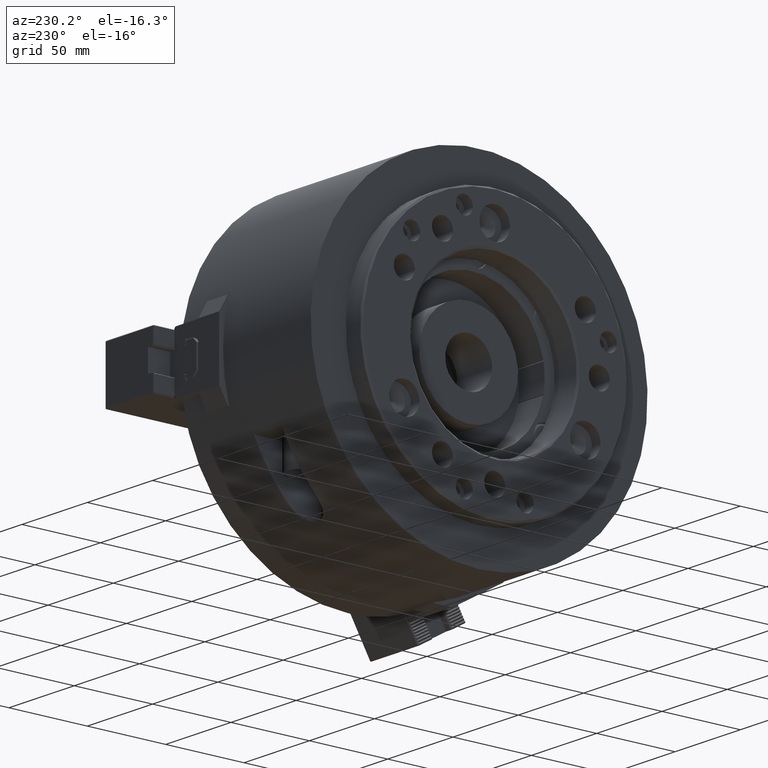
[diagram: clean part render]
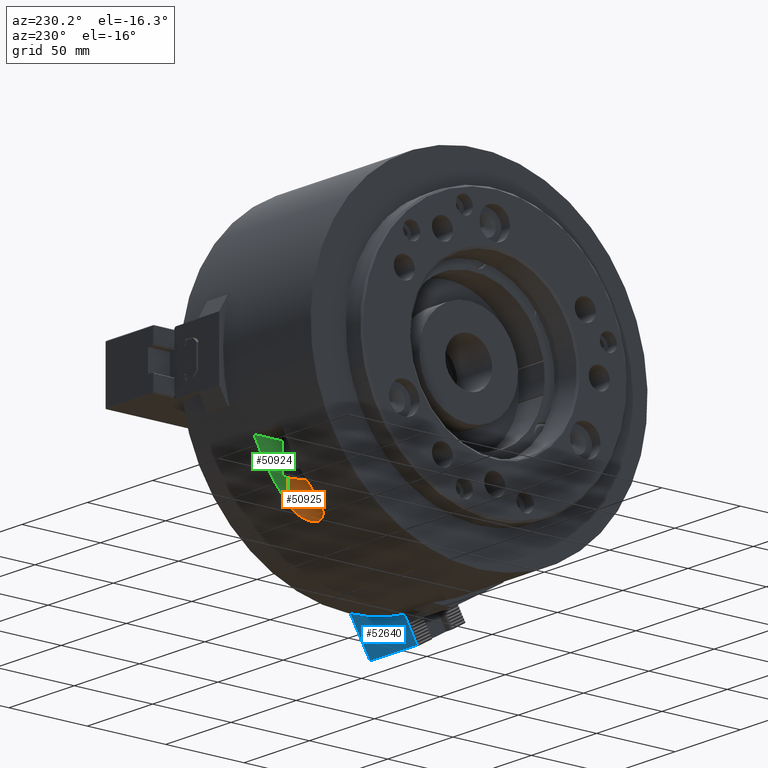
[diagram: same view with three faces highlighted in distinct colors, each labeled with its STEP entity id]
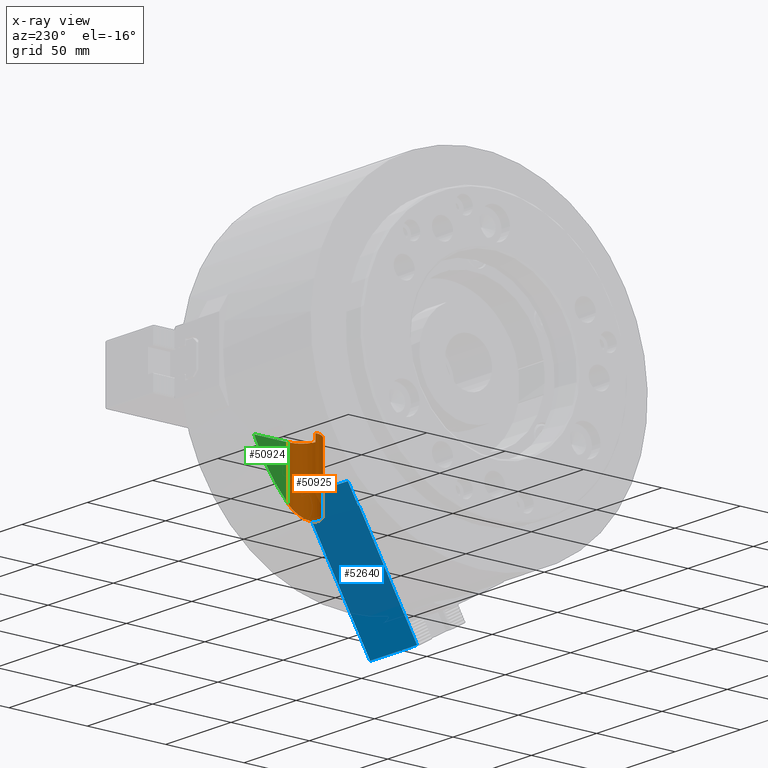
[diagram: x-ray of the same camera — body ghosted, the three highlighted faces saturated]
A machine part, auxiliary view with three faces highlighted in distinct colors.
The next image is the same camera in x-ray (body ghosted, the three faces saturated) — at least one of them is partly hidden behind the body in this view.
Their STEP definitions:

[orange] entity #50925 — the highlighted cylindrical surface (edge-blend (fillet) strip) has radius 10.5 mm, axis along (0, 0, 1).
#59=B_SPLINE_CURVE_WITH_KNOTS('',3,(#71754,#71755,#71756,#71757,#71758,
#71759,#71760,#71761,#71762,#71763,#71764,#71765),.UNSPECIFIED.,.F.,.F.,
(4,1,1,1,1,1,1,1,1,4),(3.98609107286759E-17,0.00482801106460853,0.00965602212921702,
0.0144840331938255,0.019312044258434,0.0217260497907383,0.0241400553230425,
0.028968066387651,0.0337960774522595,0.038624088516868),.UNSPECIFIED.);
#299=LINE('',#72650,#6799);
#301=LINE('',#72654,#6801);
#6799=VECTOR('',#58814,1000.);
#6801=VECTOR('',#58818,1000.);
#15586=CYLINDRICAL_SURFACE('',#54403,10.5);
#16739=ORIENTED_EDGE('',*,*,#30643,.T.);
#16740=ORIENTED_EDGE('',*,*,#31055,.T.);
#16741=ORIENTED_EDGE('',*,*,#31056,.T.);
#16742=ORIENTED_EDGE('',*,*,#31053,.F.);
#30643=EDGE_CURVE('',#42190,#42193,#59,.T.);
#31053=EDGE_CURVE('',#42190,#42495,#299,.T.);
#31055=EDGE_CURVE('',#42193,#42496,#301,.T.);
#31056=EDGE_CURVE('',#42496,#42495,#38220,.T.);
#38220=CIRCLE('',#54404,10.5);
#39159=EDGE_LOOP('',(#16739,#16740,#16741,#16742));
#42190=VERTEX_POINT('',#71748);
#42193=VERTEX_POINT('',#71753);
#42495=VERTEX_POINT('',#72651);
#42496=VERTEX_POINT('',#72655);
#47600=FACE_BOUND('',#39159,.T.);
#50925=ADVANCED_FACE('',(#47600),#15586,.F.);
#54403=AXIS2_PLACEMENT_3D('',#72653,#58816,#58817);
#54404=AXIS2_PLACEMENT_3D('',#72656,#58819,#58820);
#58814=DIRECTION('',(0.,0.,1.));
#58816=DIRECTION('',(0.,0.,1.));
#58817=DIRECTION('',(1.,0.,0.));
#58818=DIRECTION('',(0.,0.,1.));
#58819=DIRECTION('',(0.,0.,1.));
#58820=DIRECTION('',(-1.,0.,0.));
#71748=CARTESIAN_POINT('',(-45.,76.1,-75.9278604992923));
#71753=CARTESIAN_POINT('',(-66.,76.1,-75.9278604992923));
#71754=CARTESIAN_POINT('',(-45.,76.1,-75.9278604992923));
#71755=CARTESIAN_POINT('',(-45.,74.952594143434,-77.0778676917837));
#71756=CARTESIAN_POINT('',(-45.3690207820172,72.6285706103757,-79.3021002888925));
#71757=CARTESIAN_POINT('',(-47.2269107329786,69.2117958771517,-82.291827276393));
#71758=CARTESIAN_POINT('',(-50.6608044498884,66.3935076910929,-84.5597551399907));
#71759=CARTESIAN_POINT('',(-54.6688054298931,65.4078290713895,-85.3108204551561));
#71760=CARTESIAN_POINT('',(-57.9163074927674,65.7872422215263,-85.0202467639792));
#71761=CARTESIAN_POINT('',(-60.8997140071235,66.861176695147,-84.1844645401245));
#71762=CARTESIAN_POINT('',(-63.7731461482348,69.2086204219084,-82.2940763910829));
#71763=CARTESIAN_POINT('',(-65.6290650509916,72.6243910063668,-79.3060905951348));
#71764=CARTESIAN_POINT('',(-66.,74.951781182866,-77.0786824954516));
#71765=CARTESIAN_POINT('',(-66.,76.1,-75.9278604992923));
#72650=CARTESIAN_POINT('',(-45.,76.1,-107.5));
#72651=CARTESIAN_POINT('',(-45.,76.1,-44.5));
#72653=CARTESIAN_POINT('',(-55.5,76.1,-107.5));
#72654=CARTESIAN_POINT('',(-66.,76.1,-107.5));
#72655=CARTESIAN_POINT('',(-66.,76.1,-44.5));
#72656=CARTESIAN_POINT('',(-55.5,76.1,-44.5));

[blue] entity #52640 — the highlighted planar face has unit normal (0, 0.866, -0.5).
#4300=LINE('',#81945,#10800);
#4301=LINE('',#81948,#10801);
#4302=LINE('',#81950,#10802);
#4303=LINE('',#81952,#10803);
#4304=LINE('',#81954,#10804);
#4305=LINE('',#81956,#10805);
#4306=LINE('',#81958,#10806);
#10800=VECTOR('',#67115,1000.);
#10801=VECTOR('',#67116,1000.);
#10802=VECTOR('',#67117,1000.);
#10803=VECTOR('',#67118,1000.);
#10804=VECTOR('',#67119,1000.);
#10805=VECTOR('',#67120,1000.);
#10806=VECTOR('',#67121,1000.);
#14683=PLANE('',#56552);
#25630=ORIENTED_EDGE('',*,*,#35498,.F.);
#25631=ORIENTED_EDGE('',*,*,#35499,.F.);
#25632=ORIENTED_EDGE('',*,*,#35500,.F.);
#25633=ORIENTED_EDGE('',*,*,#35501,.F.);
#25634=ORIENTED_EDGE('',*,*,#35502,.T.);
#25635=ORIENTED_EDGE('',*,*,#35503,.T.);
#25636=ORIENTED_EDGE('',*,*,#35504,.F.);
#35498=EDGE_CURVE('',#45533,#45534,#4300,.T.);
#35499=EDGE_CURVE('',#45535,#45533,#4301,.T.);
#35500=EDGE_CURVE('',#45536,#45535,#4302,.T.);
#35501=EDGE_CURVE('',#45537,#45536,#4303,.T.);
#35502=EDGE_CURVE('',#45537,#45538,#4304,.T.);
#35503=EDGE_CURVE('',#45538,#45539,#4305,.T.);
#35504=EDGE_CURVE('',#45534,#45539,#4306,.T.);
#41158=EDGE_LOOP('',(#25630,#25631,#25632,#25633,#25634,#25635,#25636));
#45533=VERTEX_POINT('',#81946);
#45534=VERTEX_POINT('',#81947);
#45535=VERTEX_POINT('',#81949);
#45536=VERTEX_POINT('',#81951);
#45537=VERTEX_POINT('',#81953);
#45538=VERTEX_POINT('',#81955);
#45539=VERTEX_POINT('',#81957);
#49625=FACE_BOUND('',#41158,.T.);
#52640=ADVANCED_FACE('',(#49625),#14683,.T.);
#56552=AXIS2_PLACEMENT_3D('',#81944,#67113,#67114);
#67113=DIRECTION('',(0.,0.866025403784443,-0.499999999999992));
#67114=DIRECTION('',(-1.,0.,0.));
#67115=DIRECTION('',(0.,-0.499999999999992,-0.866025403784443));
#67116=DIRECTION('',(-1.,0.,0.));
#67117=DIRECTION('',(0.,-0.499999999999992,-0.866025403784443));
#67118=DIRECTION('',(-0.65465367070799,-0.377964473009216,-0.654653670707971));
#67119=DIRECTION('',(1.,0.,0.));
#67120=DIRECTION('',(0.,-0.499999999999992,-0.866025403784443));
#67121=DIRECTION('',(1.,0.,0.));
#81944=CARTESIAN_POINT('',(2.60000000000051,1.27046344311622,-32.7994927673648));
#81945=CARTESIAN_POINT('',(2.60000000000051,1.27046344311622,-32.7994927673648));
#81946=CARTESIAN_POINT('',(2.60000000000051,-8.72953655688363,-50.1200008430536));
#81947=CARTESIAN_POINT('',(2.60000000000051,-45.929536556883,-114.552290884616));
#81948=CARTESIAN_POINT('',(1.20000000000001,-8.72953655688363,-50.1200008430536));
#81949=CARTESIAN_POINT('',(3.20000000000001,-8.72953655688363,-50.1200008430536));
#81950=CARTESIAN_POINT('',(3.20000000000001,-8.72953655688363,-50.1200008430536));
#81951=CARTESIAN_POINT('',(3.20000000000001,-2.33797573931868,-39.0494927673644));
#81952=CARTESIAN_POINT('',(6.51428571428571,-0.424471990004609,-35.7352070530789));
#81953=CARTESIAN_POINT('',(3.40000000000001,-2.22250568548073,-38.8494927673644));
#81954=CARTESIAN_POINT('',(1.20000000000001,-2.22250568548073,-38.8494927673644));
#81955=CARTESIAN_POINT('',(38.6,-2.22250568548073,-38.8494927673644));
#81956=CARTESIAN_POINT('',(38.6,1.27046344311622,-32.7994927673648));
#81957=CARTESIAN_POINT('',(38.6,-45.929536556883,-114.552290884616));
#81958=CARTESIAN_POINT('',(38.6,-45.929536556883,-114.552290884616));

[green] entity #50924 — the highlighted planar face has unit normal (1, 0, 0).
#299=LINE('',#72650,#6799);
#300=LINE('',#72652,#6800);
#6799=VECTOR('',#58814,1000.);
#6800=VECTOR('',#58815,1000.);
#13177=PLANE('',#54402);
#16736=ORIENTED_EDGE('',*,*,#30640,.F.);
#16737=ORIENTED_EDGE('',*,*,#31053,.T.);
#16738=ORIENTED_EDGE('',*,*,#31054,.T.);
#30640=EDGE_CURVE('',#42190,#42191,#38017,.T.);
#31053=EDGE_CURVE('',#42190,#42495,#299,.T.);
#31054=EDGE_CURVE('',#42495,#42191,#300,.T.);
#38017=CIRCLE('',#54026,107.5);
#39158=EDGE_LOOP('',(#16736,#16737,#16738));
#42190=VERTEX_POINT('',#71748);
#42191=VERTEX_POINT('',#71749);
#42495=VERTEX_POINT('',#72651);
#47599=FACE_BOUND('',#39158,.T.);
#50924=ADVANCED_FACE('',(#47599),#13177,.F.);
#54026=AXIS2_PLACEMENT_3D('',#71747,#57851,#57852);
#54402=AXIS2_PLACEMENT_3D('',#72649,#58812,#58813);
#57851=DIRECTION('',(1.,1.68468328065321E-16,0.));
#57852=DIRECTION('',(-1.68468328065321E-16,1.,0.));
#58812=DIRECTION('',(1.,1.68468328065321E-16,0.));
#58813=DIRECTION('',(-1.68468328065321E-16,1.,0.));
#58814=DIRECTION('',(0.,0.,1.));
#58815=DIRECTION('',(-1.68468328065321E-16,1.,0.));
#71747=CARTESIAN_POINT('',(-45.,0.,0.));
#71748=CARTESIAN_POINT('',(-45.,76.1,-75.9278604992923));
#71749=CARTESIAN_POINT('',(-45.,97.8570385818005,-44.5));
#72649=CARTESIAN_POINT('',(-45.,117.288121135842,-107.5));
#72650=CARTESIAN_POINT('',(-45.,76.1,-107.5));
#72651=CARTESIAN_POINT('',(-45.,76.1,-44.5));
#72652=CARTESIAN_POINT('',(-45.,117.288121135842,-44.5));